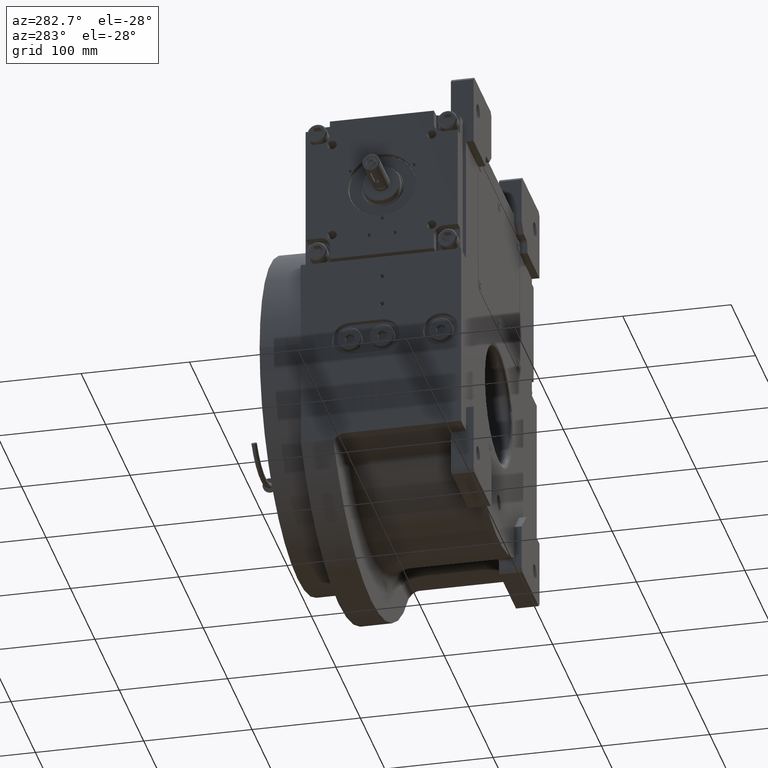
[diagram: clean part render]
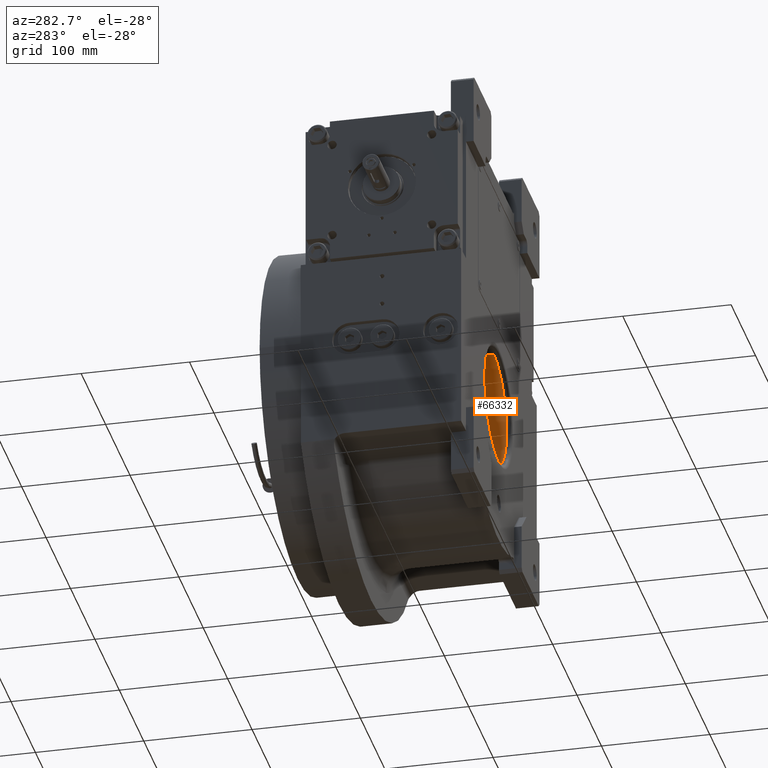
[diagram: same view with one face highlighted and labeled with its STEP entity id]
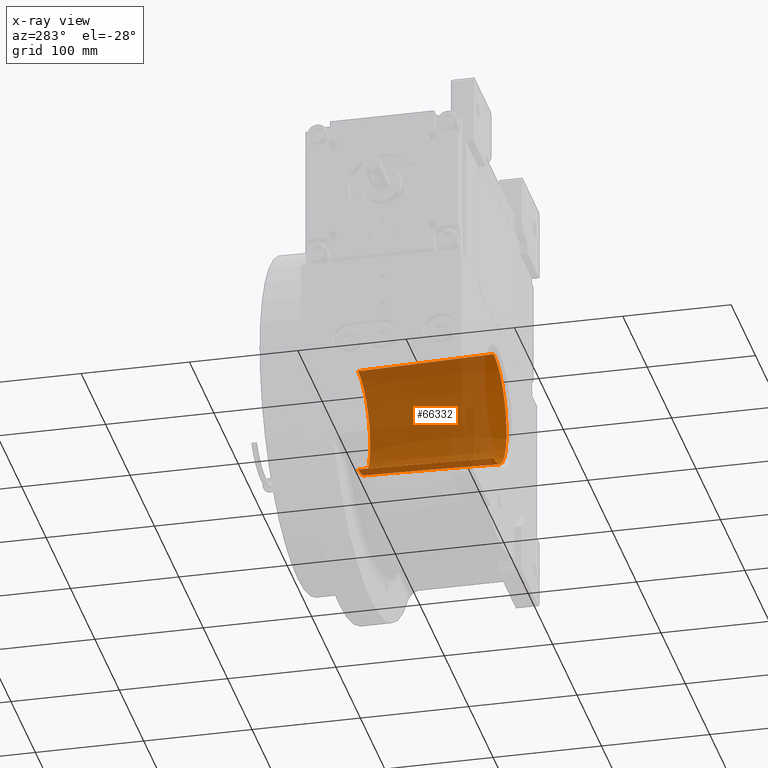
[diagram: x-ray of the same camera — body ghosted, the highlighted face saturated]
A machine part, auxiliary view. The second image highlights one B-rep face of the part: STEP entity #66332.
The next image is the same camera in x-ray: the body ghosted, the highlighted face saturated — about 89% of this face is hidden behind the body in this view.
In plain terms, the highlighted conical surface has half-angle 1.292 deg.
Its self-contained STEP definition (entity closure, byte-faithful):
#6354 = EDGE_CURVE ( 'NONE', #37709, #48878, #31613, .T. ) ;
#7428 = EDGE_LOOP ( 'NONE', ( #64950, #15601, #62034, #43123 ) ) ;
#9263 = DIRECTION ( 'NONE',  ( 0.9882587857891660388, 2.055887273401757417E-08, -0.1527893069246760438 ) ) ;
#11405 = AXIS2_PLACEMENT_3D ( 'NONE', #30680, #26085, #9263 ) ;
#15601 = ORIENTED_EDGE ( 'NONE', *, *, #67501, .T. ) ;
#17116 = VECTOR ( 'NONE', #35428, 1000.000000000000114 ) ;
#19683 = DIRECTION ( 'NONE',  ( 0.000000000000000000, 0.000000000000000000, 1.000000000000000000 ) ) ;
#20044 = CARTESIAN_POINT ( 'NONE',  ( -3.083077640091004570E-08, 57.06765196477320501, 2.539432025222259547E-15 ) ) ;
#20507 = LINE ( 'NONE', #31747, #26350 ) ;
#23263 = VERTEX_POINT ( 'NONE', #63980 ) ;
#26085 = DIRECTION ( 'NONE',  ( -2.310691404686089221E-08, 0.9999999999999997780, -1.490116125507999888E-08 ) ) ;
#26350 = VECTOR ( 'NONE', #31409, 1000.000000000000114 ) ;
#27752 = CARTESIAN_POINT ( 'NONE',  ( -5.647091595521470526E-12, 57.06765196477320501, 50.06614318876450653 ) ) ;
#29529 = EDGE_CURVE ( 'NONE', #48878, #23263, #20507, .T. ) ;
#30587 = DIRECTION ( 'NONE',  ( 0.000000000000000000, -1.000000000000000000, 1.836909530733564901E-16 ) ) ;
#30680 = CARTESIAN_POINT ( 'NONE',  ( -5.180071170158429987E-08, -68.11275406274060629, 3.434346457190809174E-14 ) ) ;
#31409 = DIRECTION ( 'NONE',  ( -2.761658737181604074E-18, 0.9997457016474147196, 0.02255065492437784494 ) ) ;
#31613 = CIRCLE ( 'NONE', #11405, 52.88976140256119152 ) ;
#31747 = CARTESIAN_POINT ( 'NONE',  ( 6.477127694746659705E-15, -68.11275327462179519, -52.88976135205919604 ) ) ;
#35428 = DIRECTION ( 'NONE',  ( 5.523317474363207377E-18, 0.9997457016474147196, -0.02255065492437819882 ) ) ;
#37709 = VERTEX_POINT ( 'NONE', #52896 ) ;
#40403 = FACE_OUTER_BOUND ( 'NONE', #7428, .T. ) ;
#43123 = ORIENTED_EDGE ( 'NONE', *, *, #6354, .F. ) ;
#44959 = CARTESIAN_POINT ( 'NONE',  ( 0.000000000000000000, 2232.333333333314840, -3.962844522719785252E-13 ) ) ;
#48878 = VERTEX_POINT ( 'NONE', #51817 ) ;
#49756 = AXIS2_PLACEMENT_3D ( 'NONE', #20044, #52687, #69210 ) ;
#51781 = EDGE_CURVE ( 'NONE', #37709, #63691, #57546, .T. ) ;
#51817 = CARTESIAN_POINT ( 'NONE',  ( 3.366158563859759886E-11, -68.11275327462200835, -52.88976135205919604 ) ) ;
#52687 = DIRECTION ( 'NONE',  ( -1.997138262491069651E-08, 0.9999999999999997780, -6.123233971614118157E-17 ) ) ;
#52896 = CARTESIAN_POINT ( 'NONE',  ( -3.366447261396295104E-11, -68.11275327462200835, 52.88976135205919604 ) ) ;
#54126 = CONICAL_SURFACE ( 'NONE', #63154, 1.000000000000000000, 0.02255256665030591981 ) ;
#57546 = LINE ( 'NONE', #62146, #17116 ) ;
#62034 = ORIENTED_EDGE ( 'NONE', *, *, #29529, .F. ) ;
#62146 = CARTESIAN_POINT ( 'NONE',  ( -1.295425538949331941E-14, -68.11275327462179519, 52.88976135205919604 ) ) ;
#62188 = CIRCLE ( 'NONE', #49756, 50.06614321695208503 ) ;
#63154 = AXIS2_PLACEMENT_3D ( 'NONE', #44959, #30587, #19683 ) ;
#63691 = VERTEX_POINT ( 'NONE', #27752 ) ;
#63980 = CARTESIAN_POINT ( 'NONE',  ( 5.632922360699180090E-12, 57.06765196477320501, -50.06614318876450653 ) ) ;
#64950 = ORIENTED_EDGE ( 'NONE', *, *, #51781, .T. ) ;
#66332 = ADVANCED_FACE ( 'NONE', ( #40403 ), #54126, .F. ) ;
#67501 = EDGE_CURVE ( 'NONE', #63691, #23263, #62188, .T. ) ;
#69210 = DIRECTION ( 'NONE',  ( 0.9817544671349441865, 1.960699413717118186E-08, -0.1901530074981230556 ) ) ;